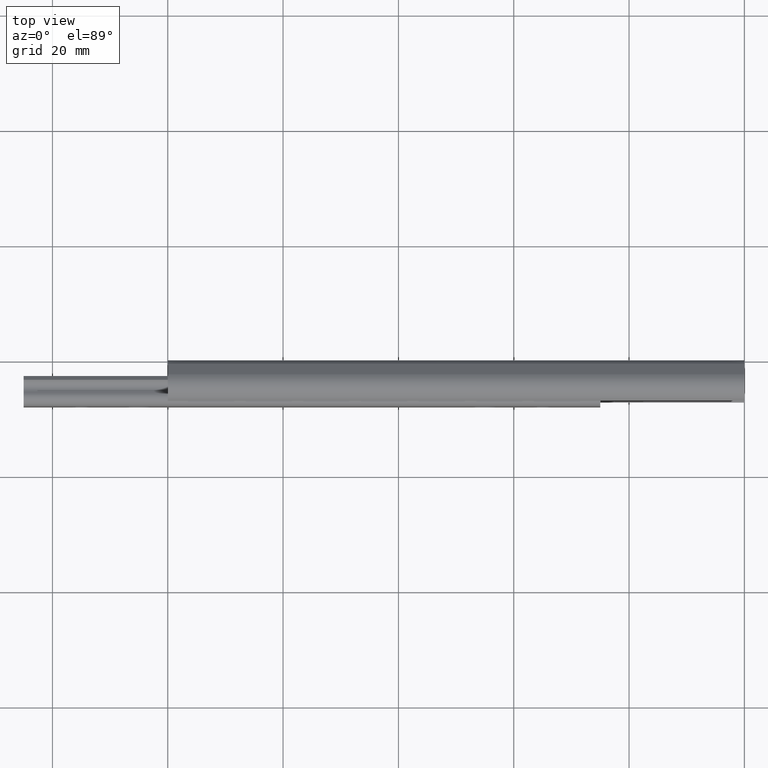
[diagram: clean part render]
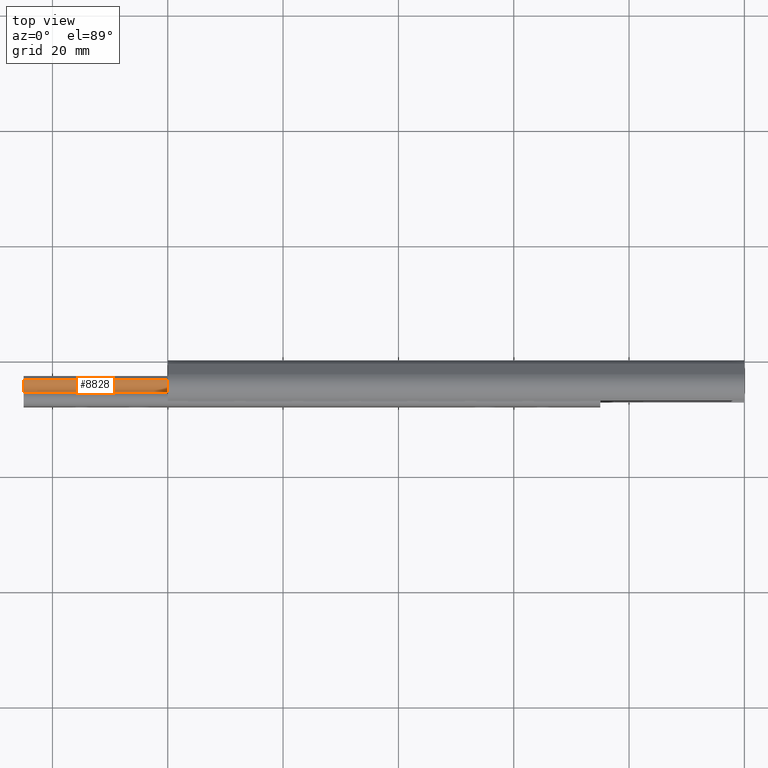
[diagram: same view with one face highlighted and labeled with its STEP entity id]
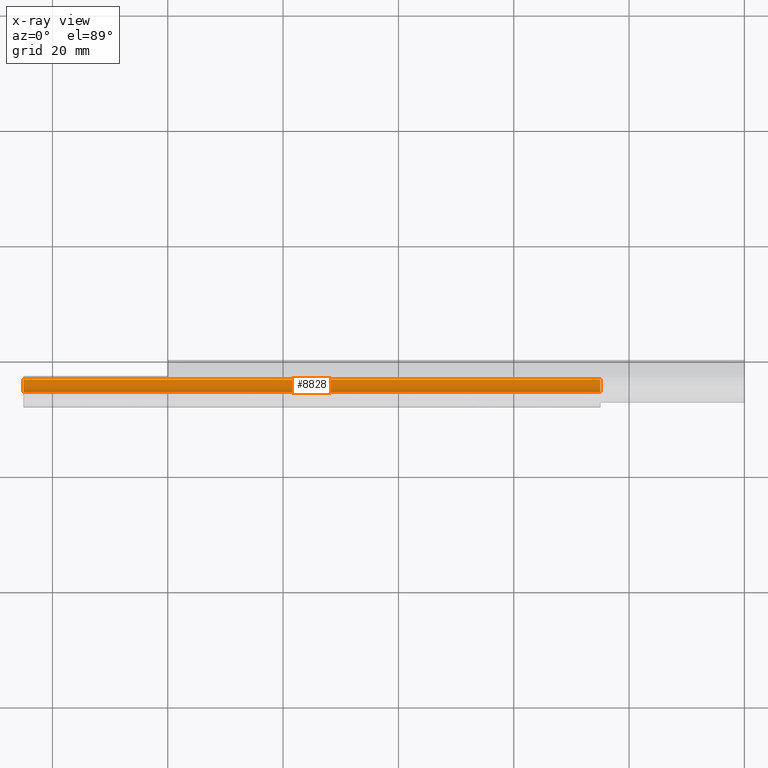
[diagram: x-ray of the same camera — body ghosted, the highlighted face saturated]
A machine part, top view. The second image highlights one B-rep face of the part: STEP entity #8828.
The next image is the same camera in x-ray: the body ghosted, the highlighted face saturated — about 0% of this face is hidden behind the body in this view.
In plain terms, the highlighted face is a freeform B-spline surface patch.
Its self-contained STEP definition (entity closure, byte-faithful):
#8223=CARTESIAN_POINT('',(-25.0,-5.520770559995830,5.796694574426810));
#8224=VERTEX_POINT('',#8223);
#8225=CARTESIAN_POINT('',(-25.0,-3.360986249243195,5.906695349265091));
#8226=VERTEX_POINT('',#8225);
#8227=CARTESIAN_POINT('',(-25.0,-5.520770559995830,5.796694574426810));
#8228=CARTESIAN_POINT('',(-24.999999999999996,-4.389711761106783,4.847075548436417));
#8229=CARTESIAN_POINT('',(-25.0,-3.360986249243201,5.906695349265095));
#8237=(BOUNDED_CURVE()B_SPLINE_CURVE(2,(#8227,#8228,#8229),.UNSPECIFIED.,.F.,.U.)CURVE()GEOMETRIC_REPRESENTATION_ITEM()QUASI_UNIFORM_CURVE()RATIONAL_B_SPLINE_CURVE((1.0,0.732163616853404,1.0))REPRESENTATION_ITEM(''));
#8238=EDGE_CURVE('',#8224,#8226,#8237,.T.);
#8404=CARTESIAN_POINT('',(75.0,-3.360986249243195,5.906695349265091));
#8405=VERTEX_POINT('',#8404);
#8411=CARTESIAN_POINT('',(75.0,-5.520770942139200,5.796694532959880));
#8412=VERTEX_POINT('',#8411);
#8413=CARTESIAN_POINT('',(75.0,-5.520770942139207,5.796694532959872));
#8414=CARTESIAN_POINT('',(75.0,-4.389711933932813,4.847075370420143));
#8415=CARTESIAN_POINT('',(75.0,-3.360986249243201,5.906695349265096));
#8423=(BOUNDED_CURVE()B_SPLINE_CURVE(2,(#8413,#8414,#8415),.UNSPECIFIED.,.F.,.U.)CURVE()GEOMETRIC_REPRESENTATION_ITEM()QUASI_UNIFORM_CURVE()RATIONAL_B_SPLINE_CURVE((1.0,0.732163559787558,1.0))REPRESENTATION_ITEM(''));
#8424=EDGE_CURVE('',#8412,#8405,#8423,.T.);
#8793=CARTESIAN_POINT('',(75.0,-5.520770942139200,5.796694532959880));
#8794=CARTESIAN_POINT('',(-25.0,-5.520770559995830,5.796694574426810));
#8795=QUASI_UNIFORM_CURVE('',1,(#8793,#8794),.UNSPECIFIED.,.F.,.U.);
#8796=EDGE_CURVE('',#8412,#8224,#8795,.T.);
#8804=CARTESIAN_POINT('',(77.500000000000014,-5.555069087724935,5.826335816538157));
#8805=CARTESIAN_POINT('',(-27.562500000000000,-5.555069087724935,5.826335816538157));
#8806=CARTESIAN_POINT('',(77.500000000000014,-4.339877608316331,4.745447535247381));
#8807=CARTESIAN_POINT('',(-27.562500000000000,-4.339877608316331,4.745447535247381));
#8808=CARTESIAN_POINT('',(77.500000000000014,-3.288679035137034,5.986411421911618));
#8809=CARTESIAN_POINT('',(-27.562500000000004,-3.288679035137034,5.986411421911618));
#8817=(BOUNDED_SURFACE()B_SPLINE_SURFACE(1,2,((#8804,#8806,#8808),(#8805,#8807,#8809)),.UNSPECIFIED.,.F.,.F.,.U.)B_SPLINE_SURFACE_WITH_KNOTS((2,2),(3,3),(0.0,105.062500000000000),(0.0,2.675327106572594),.UNSPECIFIED.)GEOMETRIC_REPRESENTATION_ITEM()RATIONAL_B_SPLINE_SURFACE(((1.0,0.696930948879971,0.995488671579597),(1.0,0.696930948879971,0.995488671579597)))REPRESENTATION_ITEM('')SURFACE());
#8818=CARTESIAN_POINT('',(75.0,-3.360986249243195,5.906695349265091));
#8819=CARTESIAN_POINT('',(-25.0,-3.360986249243195,5.906695349265091));
#8820=QUASI_UNIFORM_CURVE('',1,(#8818,#8819),.UNSPECIFIED.,.F.,.U.);
#8821=EDGE_CURVE('',#8405,#8226,#8820,.T.);
#8822=ORIENTED_EDGE('',*,*,#8821,.T.);
#8823=ORIENTED_EDGE('',*,*,#8238,.F.);
#8824=ORIENTED_EDGE('',*,*,#8796,.F.);
#8825=ORIENTED_EDGE('',*,*,#8424,.T.);
#8826=EDGE_LOOP('',(#8822,#8823,#8824,#8825));
#8827=FACE_OUTER_BOUND('',#8826,.T.);
#8828=ADVANCED_FACE('',(#8827),#8817,.F.);